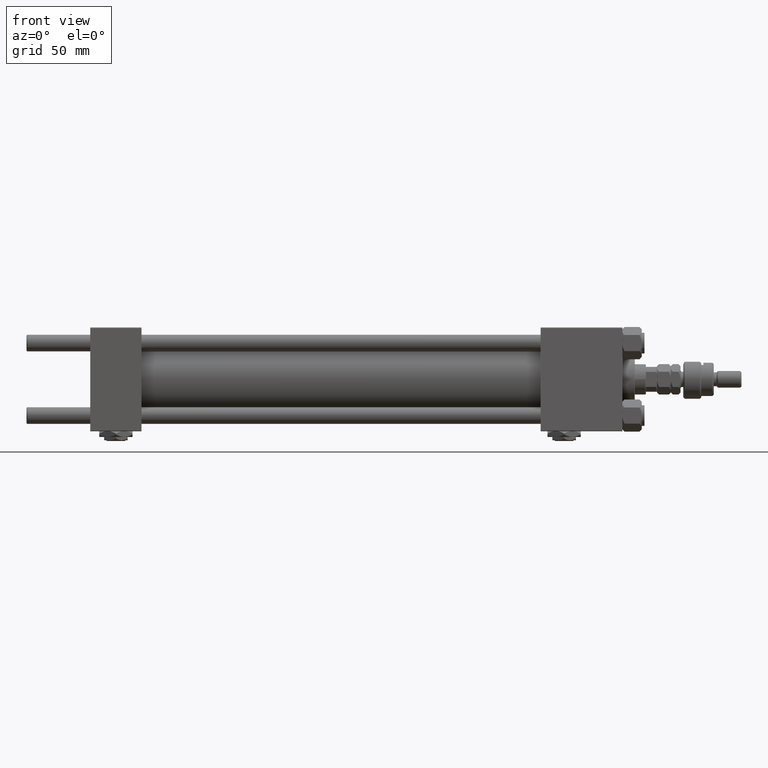
[diagram: clean part render]
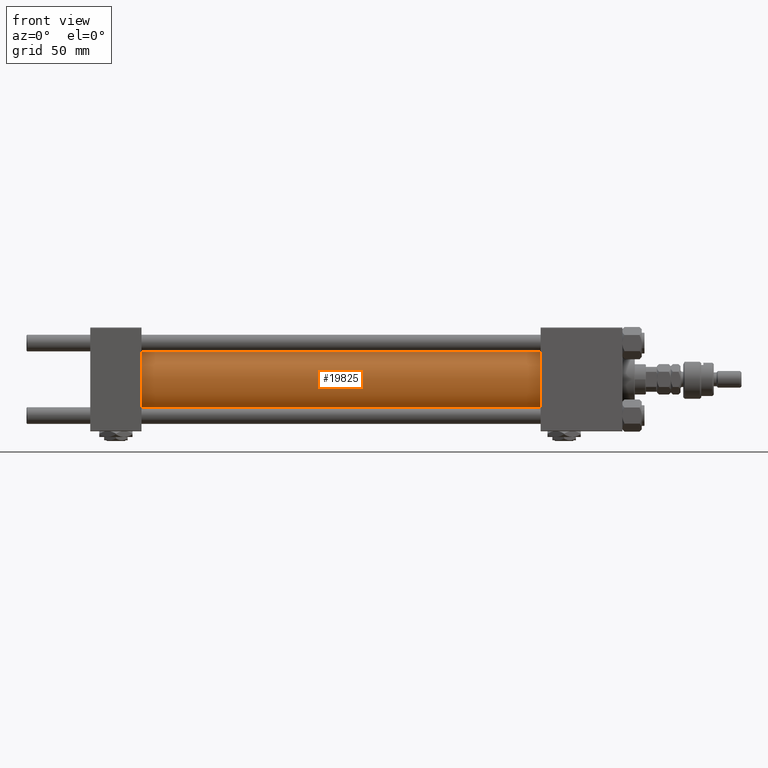
[diagram: same view with one face highlighted and labeled with its STEP entity id]
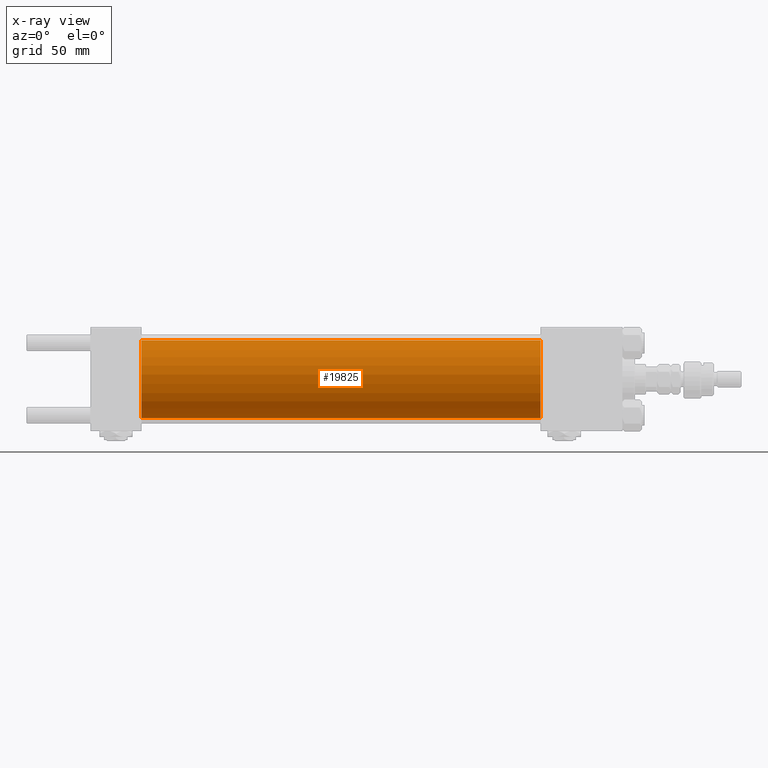
[diagram: x-ray of the same camera — body ghosted, the highlighted face saturated]
A machine part, front view. The second image highlights one B-rep face of the part: STEP entity #19825.
The next image is the same camera in x-ray: the body ghosted, the highlighted face saturated — about 0% of this face is hidden behind the body in this view.
In plain terms, the highlighted cylindrical surface (partial cylindrical patch) has radius 28 mm, axis along (-1, -0, -0).
Its self-contained STEP definition (entity closure, byte-faithful):
#759 = CARTESIAN_POINT ( 'NONE',  ( 36.99999999999997868, 0.000000000000000000, 28.00000000000000000 ) ) ;
#810 = EDGE_CURVE ( 'NONE', #8826, #49638, #35978, .T. ) ;
#1579 = ORIENTED_EDGE ( 'NONE', *, *, #810, .T. ) ;
#3648 = AXIS2_PLACEMENT_3D ( 'NONE', #33439, #50251, #41977 ) ;
#3695 = AXIS2_PLACEMENT_3D ( 'NONE', #9769, #23312, #48711 ) ;
#4837 = VECTOR ( 'NONE', #15243, 1000.000000000000000 ) ;
#5807 = VERTEX_POINT ( 'NONE', #20633 ) ;
#6895 = CARTESIAN_POINT ( 'NONE',  ( 324.9999999999999432, 3.429011037612589276E-15, -28.00000000000000000 ) ) ;
#7548 = ORIENTED_EDGE ( 'NONE', *, *, #52028, .F. ) ;
#8826 = VERTEX_POINT ( 'NONE', #26088 ) ;
#9519 = CARTESIAN_POINT ( 'NONE',  ( 324.9999999999999432, 3.429011037612589276E-15, -28.00000000000000000 ) ) ;
#9769 = CARTESIAN_POINT ( 'NONE',  ( 324.9999999999999432, 0.000000000000000000, 0.000000000000000000 ) ) ;
#15243 = DIRECTION ( 'NONE',  ( -1.000000000000000000, -0.000000000000000000, -0.000000000000000000 ) ) ;
#16562 = CYLINDRICAL_SURFACE ( 'NONE', #3648, 28.00000000000000000 ) ;
#17733 = DIRECTION ( 'NONE',  ( 1.000000000000000000, -0.000000000000000000, 0.000000000000000000 ) ) ;
#19825 = ADVANCED_FACE ( 'NONE', ( #54399 ), #16562, .T. ) ;
#19847 = CIRCLE ( 'NONE', #31333, 28.00000000000000000 ) ;
#20633 = CARTESIAN_POINT ( 'NONE',  ( 36.99999999999997868, 3.429011037612589276E-15, -28.00000000000000000 ) ) ;
#22972 = CARTESIAN_POINT ( 'NONE',  ( 324.9999999999999432, 0.000000000000000000, 28.00000000000000000 ) ) ;
#23312 = DIRECTION ( 'NONE',  ( 1.000000000000000000, 0.000000000000000000, 0.000000000000000000 ) ) ;
#23747 = DIRECTION ( 'NONE',  ( -1.000000000000000000, -0.000000000000000000, -0.000000000000000000 ) ) ;
#26088 = CARTESIAN_POINT ( 'NONE',  ( 324.9999999999999432, 0.000000000000000000, 28.00000000000000000 ) ) ;
#27550 = ORIENTED_EDGE ( 'NONE', *, *, #47650, .F. ) ;
#28189 = LINE ( 'NONE', #6895, #37265 ) ;
#31333 = AXIS2_PLACEMENT_3D ( 'NONE', #37396, #17733, #42614 ) ;
#33343 = ORIENTED_EDGE ( 'NONE', *, *, #35048, .T. ) ;
#33439 = CARTESIAN_POINT ( 'NONE',  ( 324.9999999999999432, 0.000000000000000000, 0.000000000000000000 ) ) ;
#33724 = CIRCLE ( 'NONE', #3695, 28.00000000000000000 ) ;
#35048 = EDGE_CURVE ( 'NONE', #49638, #5807, #19847, .T. ) ;
#35978 = LINE ( 'NONE', #22972, #4837 ) ;
#37018 = VERTEX_POINT ( 'NONE', #9519 ) ;
#37265 = VECTOR ( 'NONE', #23747, 1000.000000000000000 ) ;
#37396 = CARTESIAN_POINT ( 'NONE',  ( 36.99999999999997868, 0.000000000000000000, 0.000000000000000000 ) ) ;
#41977 = DIRECTION ( 'NONE',  ( 0.000000000000000000, 0.000000000000000000, 1.000000000000000000 ) ) ;
#42614 = DIRECTION ( 'NONE',  ( 0.000000000000000000, 0.000000000000000000, 1.000000000000000000 ) ) ;
#45914 = EDGE_LOOP ( 'NONE', ( #7548, #27550, #1579, #33343 ) ) ;
#47650 = EDGE_CURVE ( 'NONE', #8826, #37018, #33724, .T. ) ;
#48711 = DIRECTION ( 'NONE',  ( 0.000000000000000000, 0.000000000000000000, -1.000000000000000000 ) ) ;
#49638 = VERTEX_POINT ( 'NONE', #759 ) ;
#50251 = DIRECTION ( 'NONE',  ( -1.000000000000000000, -0.000000000000000000, -0.000000000000000000 ) ) ;
#52028 = EDGE_CURVE ( 'NONE', #37018, #5807, #28189, .T. ) ;
#54399 = FACE_OUTER_BOUND ( 'NONE', #45914, .T. ) ;